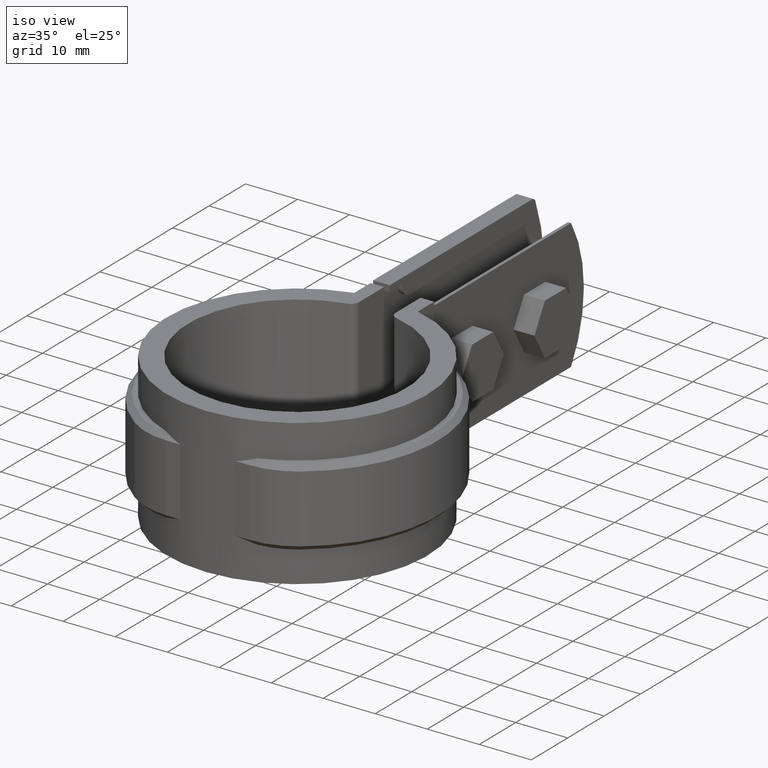
[diagram: clean part render]
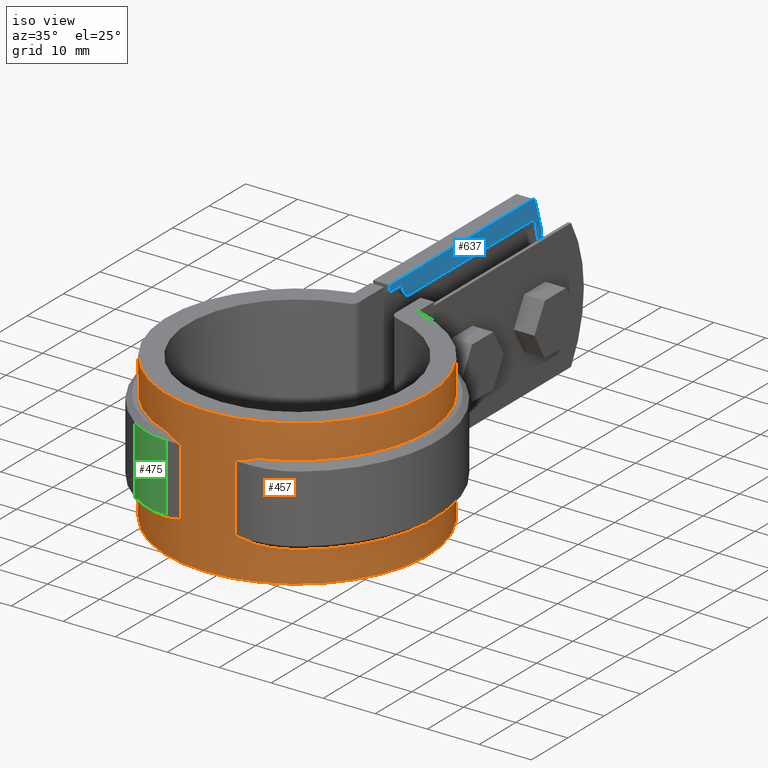
[diagram: same view with three faces highlighted in distinct colors, each labeled with its STEP entity id]
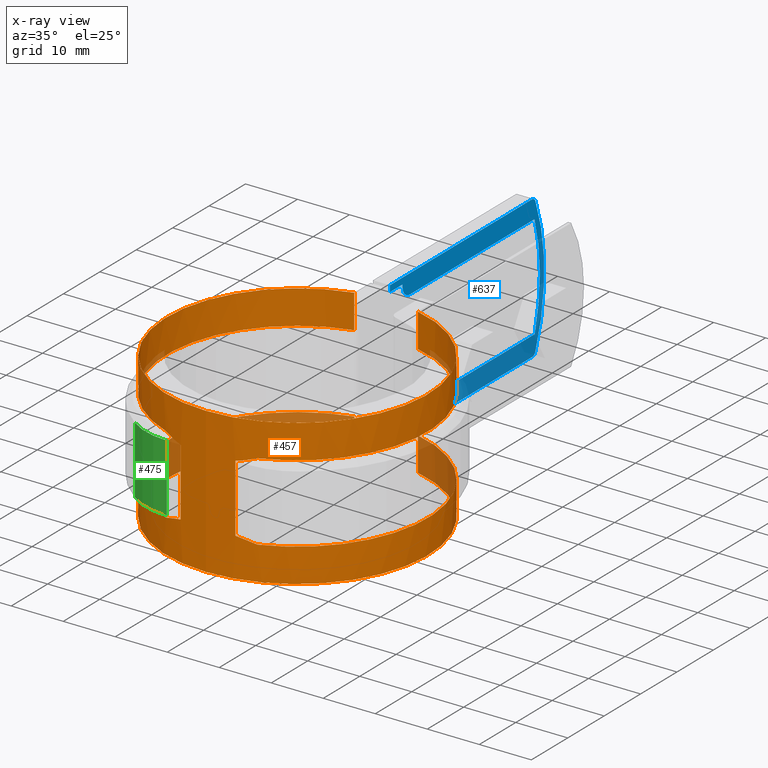
[diagram: x-ray of the same camera — body ghosted, the three highlighted faces saturated]
A machine part, iso view with three faces highlighted in distinct colors.
The next image is the same camera in x-ray (body ghosted, the three faces saturated) — at least one of them is partly hidden behind the body in this view.
Their STEP definitions:

[orange] entity #457 — the highlighted cylindrical surface (partial cylindrical patch) has radius 25.095 mm, axis along (0, 0, 1).
#457 = ADVANCED_FACE( '', ( #909 ), #910, .T. );
#909 = FACE_OUTER_BOUND( '', #1985, .T. );
#910 = CYLINDRICAL_SURFACE( '', #1986, 25.0950000000000 );
#1985 = EDGE_LOOP( '', ( #4580, #4581, #4582, #4583, #4584, #4585, #4586, #4587, #4588, #4589, #4590, #4591, #4592, #4593, #4594, #4595, #4596, #4597, #4598, #4599 ) );
#1986 = AXIS2_PLACEMENT_3D( '', #4600, #4601, #4602 );
#4580 = ORIENTED_EDGE( '', *, *, #6748, .F. );
#4581 = ORIENTED_EDGE( '', *, *, #6743, .T. );
#4582 = ORIENTED_EDGE( '', *, *, #6773, .T. );
#4583 = ORIENTED_EDGE( '', *, *, #6893, .F. );
#4584 = ORIENTED_EDGE( '', *, *, #6894, .T. );
#4585 = ORIENTED_EDGE( '', *, *, #6895, .T. );
#4586 = ORIENTED_EDGE( '', *, *, #6874, .T. );
#4587 = ORIENTED_EDGE( '', *, *, #6891, .F. );
#4588 = ORIENTED_EDGE( '', *, *, #6896, .T. );
#4589 = ORIENTED_EDGE( '', *, *, #6897, .T. );
#4590 = ORIENTED_EDGE( '', *, *, #6898, .F. );
#4591 = ORIENTED_EDGE( '', *, *, #6899, .T. );
#4592 = ORIENTED_EDGE( '', *, *, #6830, .T. );
#4593 = ORIENTED_EDGE( '', *, *, #6900, .T. );
#4594 = ORIENTED_EDGE( '', *, *, #6901, .T. );
#4595 = ORIENTED_EDGE( '', *, *, #6902, .T. );
#4596 = ORIENTED_EDGE( '', *, *, #6903, .T. );
#4597 = ORIENTED_EDGE( '', *, *, #6904, .T. );
#4598 = ORIENTED_EDGE( '', *, *, #6905, .F. );
#4599 = ORIENTED_EDGE( '', *, *, #6888, .F. );
#4600 = CARTESIAN_POINT( '', ( 0.000000000000000, 0.000000000000000, -26.5000000000000 ) );
#4601 = DIRECTION( '', ( 0.000000000000000, 0.000000000000000, 1.00000000000000 ) );
#4602 = DIRECTION( '', ( -1.00000000000000, 6.07153216591882E-017, 0.000000000000000 ) );
#6743 = EDGE_CURVE( '', #7779, #7777, #7780, .F. );
#6748 = EDGE_CURVE( '', #7779, #7787, #7788, .T. );
#6773 = EDGE_CURVE( '', #7777, #7828, #7830, .T. );
#6830 = EDGE_CURVE( '', #7929, #7932, #7934, .F. );
#6874 = EDGE_CURVE( '', #8005, #8006, #8007, .T. );
#6888 = EDGE_CURVE( '', #7787, #8025, #8026, .F. );
#6891 = EDGE_CURVE( '', #8028, #8006, #8030, .F. );
#6893 = EDGE_CURVE( '', #8032, #7828, #8033, .F. );
#6894 = EDGE_CURVE( '', #8032, #8034, #8035, .F. );
#6895 = EDGE_CURVE( '', #8034, #8005, #8036, .F. );
#6896 = EDGE_CURVE( '', #8028, #8037, #8038, .F. );
#6897 = EDGE_CURVE( '', #8037, #8039, #8040, .F. );
#6898 = EDGE_CURVE( '', #8041, #8039, #8042, .T. );
#6899 = EDGE_CURVE( '', #8041, #7929, #8043, .F. );
#6900 = EDGE_CURVE( '', #7932, #8044, #8045, .F. );
#6901 = EDGE_CURVE( '', #8044, #8046, #8047, .T. );
#6902 = EDGE_CURVE( '', #8046, #8048, #8049, .F. );
#6903 = EDGE_CURVE( '', #8048, #8050, #8051, .T. );
#6904 = EDGE_CURVE( '', #8050, #8052, #8053, .F. );
#6905 = EDGE_CURVE( '', #8025, #8052, #8054, .F. );
#7777 = VERTEX_POINT( '', #10158 );
#7779 = VERTEX_POINT( '', #10161 );
#7780 = B_SPLINE_CURVE_WITH_KNOTS( '', 3, ( #10162, #10163, #10164, #10165, #10166 ), .UNSPECIFIED., .F., .F., ( 4, 1, 4 ), ( 0.154019345708681, 0.154505863918517, 0.154992382128352 ), .UNSPECIFIED. );
#7787 = VERTEX_POINT( '', #10176 );
#7788 = CIRCLE( '', #10177, 25.0950000000000 );
#7828 = VERTEX_POINT( '', #10537 );
#7830 = ELLIPSE( '', #10540, 35.4896893477528, 25.0950000000000 );
#7929 = VERTEX_POINT( '', #10994 );
#7932 = VERTEX_POINT( '', #10998 );
#7934 = ELLIPSE( '', #11001, 35.4896893477529, 25.0950000000000 );
#8005 = VERTEX_POINT( '', #11202 );
#8006 = VERTEX_POINT( '', #11203 );
#8007 = CIRCLE( '', #11204, 25.0950000000000 );
#8025 = VERTEX_POINT( '', #11264 );
#8026 = LINE( '', #11265, #11266 );
#8028 = VERTEX_POINT( '', #11269 );
#8030 = LINE( '', #11272, #11273 );
#8032 = VERTEX_POINT( '', #11278 );
#8033 = LINE( '', #11279, #11280 );
#8034 = VERTEX_POINT( '', #11281 );
#8035 = ELLIPSE( '', #11282, 35.4896893477528, 25.0950000000000 );
#8036 = B_SPLINE_CURVE_WITH_KNOTS( '', 3, ( #11283, #11284, #11285, #11286, #11287 ), .UNSPECIFIED., .F., .F., ( 4, 1, 4 ), ( 0.0100125741625973, 0.0104966312478403, 0.0109806883330834 ), .UNSPECIFIED. );
#8037 = VERTEX_POINT( '', #11288 );
#8038 = CIRCLE( '', #11289, 25.0950000000000 );
#8039 = VERTEX_POINT( '', #11290 );
#8040 = LINE( '', #11291, #11292 );
#8041 = VERTEX_POINT( '', #11293 );
#8042 = CIRCLE( '', #11294, 25.0950000000000 );
#8043 = B_SPLINE_CURVE_WITH_KNOTS( '', 3, ( #11295, #11296, #11297, #11298, #11299, #11300 ), .UNSPECIFIED., .F., .F., ( 4, 2, 4 ), ( 0.0285194462279479, 0.0290003593783156, 0.0294812725286834 ), .UNSPECIFIED. );
#8044 = VERTEX_POINT( '', #11301 );
#8045 = LINE( '', #11302, #11303 );
#8046 = VERTEX_POINT( '', #11304 );
#8047 = ELLIPSE( '', #11305, 35.4896893477528, 25.0950000000000 );
#8048 = VERTEX_POINT( '', #11306 );
#8049 = B_SPLINE_CURVE_WITH_KNOTS( '', 3, ( #11307, #11308, #11309, #11310, #11311 ), .UNSPECIFIED., .F., .F., ( 4, 1, 4 ), ( 0.128825497296135, 0.129311573833060, 0.129797650369984 ), .UNSPECIFIED. );
#8050 = VERTEX_POINT( '', #11312 );
#8051 = CIRCLE( '', #11313, 25.0950000000000 );
#8052 = VERTEX_POINT( '', #11314 );
#8053 = LINE( '', #11315, #11316 );
#8054 = CIRCLE( '', #11317, 25.0950000000000 );
#10158 = CARTESIAN_POINT( '', ( -7.90550795331972, -23.8172619962917, -5.28026199629165 ) );
#10161 = CARTESIAN_POINT( '', ( -8.78767351630305, -23.5060804723132, -5.00000000000000 ) );
#10162 = CARTESIAN_POINT( '', ( -7.90550795331972, -23.8172619962917, -5.28026199629165 ) );
#10163 = CARTESIAN_POINT( '', ( -8.05264319439010, -23.7684243583349, -5.23142435833492 ) );
#10164 = CARTESIAN_POINT( '', ( -8.34679159844528, -23.6677628411295, -5.13580403514462 ) );
#10165 = CARTESIAN_POINT( '', ( -8.64073899524960, -23.5610114762640, -5.04450885988853 ) );
#10166 = CARTESIAN_POINT( '', ( -8.78767351630305, -23.5060804723132, -5.00000000000000 ) );
#10176 = CARTESIAN_POINT( '', ( -6.10000000000002, 24.3423299008127, -5.00000000000000 ) );
#10177 = AXIS2_PLACEMENT_3D( '', #13019, #13020, #13021 );
#10537 = CARTESIAN_POINT( '', ( -5.26257123467226, -24.5370000000000, -6.00000000000000 ) );
#10540 = AXIS2_PLACEMENT_3D( '', #13033, #13034, #13035 );
#10994 = CARTESIAN_POINT( '', ( 7.90550795331963, -23.8172619962917, -19.7197380037083 ) );
#10998 = CARTESIAN_POINT( '', ( 5.26257123467226, -24.5370000000000, -19.0000000000000 ) );
#11001 = AXIS2_PLACEMENT_3D( '', #13096, #13097, #13098 );
#11202 = CARTESIAN_POINT( '', ( -8.78767351630304, -23.5060804723133, -20.0000000000000 ) );
#11203 = CARTESIAN_POINT( '', ( -6.10000000000002, 24.3423299008127, -20.0000000000000 ) );
#11204 = AXIS2_PLACEMENT_3D( '', #13145, #13146, #13147 );
#11264 = CARTESIAN_POINT( '', ( -6.10000000000002, 24.3423299008127, 1.50000000000000 ) );
#11265 = CARTESIAN_POINT( '', ( -6.10000000000002, 24.3423299008127, -26.5000000000000 ) );
#11266 = VECTOR( '', #13163, 1000.00000000000 );
#11269 = CARTESIAN_POINT( '', ( -6.10000000000002, 24.3423299008127, -26.5000000000000 ) );
#11272 = CARTESIAN_POINT( '', ( -6.10000000000002, 24.3423299008127, -26.5000000000000 ) );
#11273 = VECTOR( '', #13166, 1000.00000000000 );
#11278 = CARTESIAN_POINT( '', ( -5.26257123467226, -24.5370000000000, -19.0000000000000 ) );
#11279 = CARTESIAN_POINT( '', ( -5.26257123467227, -24.5370000000000, -26.5000000000000 ) );
#11280 = VECTOR( '', #13167, 1000.00000000000 );
#11281 = CARTESIAN_POINT( '', ( -7.90550795331963, -23.8172619962917, -19.7197380037083 ) );
#11282 = AXIS2_PLACEMENT_3D( '', #13168, #13169, #13170 );
#11283 = CARTESIAN_POINT( '', ( -8.78767351630303, -23.5060804723132, -20.0000000000000 ) );
#11284 = CARTESIAN_POINT( '', ( -8.64134229677105, -23.5607859339066, -19.9556738899697 ) );
#11285 = CARTESIAN_POINT( '', ( -8.34799126754326, -23.6673398959445, -19.8645775279822 ) );
#11286 = CARTESIAN_POINT( '', ( -8.05323993404626, -23.7682262864450, -19.7687737135551 ) );
#11287 = CARTESIAN_POINT( '', ( -7.90550795331963, -23.8172619962917, -19.7197380037083 ) );
#11288 = CARTESIAN_POINT( '', ( 6.09999999999998, 24.3423299008127, -26.5000000000000 ) );
#11289 = AXIS2_PLACEMENT_3D( '', #13171, #13172, #13173 );
#11290 = CARTESIAN_POINT( '', ( 6.09999999999998, 24.3423299008127, -20.0000000000000 ) );
#11291 = CARTESIAN_POINT( '', ( 6.09999999999998, 24.3423299008127, -26.5000000000000 ) );
#11292 = VECTOR( '', #13174, 1000.00000000000 );
#11293 = CARTESIAN_POINT( '', ( 8.78767351630305, -23.5060804723132, -20.0000000000000 ) );
#11294 = AXIS2_PLACEMENT_3D( '', #13175, #13176, #13177 );
#11295 = CARTESIAN_POINT( '', ( 7.90550795331962, -23.8172619962917, -19.7197380037083 ) );
#11296 = CARTESIAN_POINT( '', ( 8.05239838201786, -23.7685056173040, -19.7684943826960 ) );
#11297 = CARTESIAN_POINT( '', ( 8.19936032040112, -23.7182172178868, -19.8162707087742 ) );
#11298 = CARTESIAN_POINT( '', ( 8.49345721964819, -23.6144981339142, -19.9097472412063 ) );
#11299 = CARTESIAN_POINT( '', ( 8.64077810949938, -23.5609968535260, -19.9555029884549 ) );
#11300 = CARTESIAN_POINT( '', ( 8.78767351630305, -23.5060804723132, -20.0000000000000 ) );
#11301 = CARTESIAN_POINT( '', ( 5.26257123467226, -24.5370000000000, -6.00000000000000 ) );
#11302 = CARTESIAN_POINT( '', ( 5.26257123467227, -24.5370000000000, -26.5000000000000 ) );
#11303 = VECTOR( '', #13178, 1000.00000000000 );
#11304 = CARTESIAN_POINT( '', ( 7.90550795331961, -23.8172619962917, -5.28026199629169 ) );
#11305 = AXIS2_PLACEMENT_3D( '', #13179, #13180, #13181 );
#11306 = CARTESIAN_POINT( '', ( 8.78767351630307, -23.5060804723132, -5.00000000000000 ) );
#11307 = CARTESIAN_POINT( '', ( 8.78767351630308, -23.5060804723132, -4.99999999999999 ) );
#11308 = CARTESIAN_POINT( '', ( 8.64068522618238, -23.5610315776590, -5.04452514741486 ) );
#11309 = CARTESIAN_POINT( '', ( 8.34668511545622, -23.6678003927984, -5.13583789811837 ) );
#11310 = CARTESIAN_POINT( '', ( 8.05259043250689, -23.7684418712416, -5.23144187124164 ) );
#11311 = CARTESIAN_POINT( '', ( 7.90550795331961, -23.8172619962917, -5.28026199629170 ) );
#11312 = CARTESIAN_POINT( '', ( 6.09999999999998, 24.3423299008127, -5.00000000000000 ) );
#11313 = AXIS2_PLACEMENT_3D( '', #13182, #13183, #13184 );
#11314 = CARTESIAN_POINT( '', ( 6.09999999999998, 24.3423299008127, 1.50000000000000 ) );
#11315 = CARTESIAN_POINT( '', ( 6.09999999999998, 24.3423299008127, -26.5000000000000 ) );
#11316 = VECTOR( '', #13185, 1000.00000000000 );
#11317 = AXIS2_PLACEMENT_3D( '', #13186, #13187, #13188 );
#13019 = CARTESIAN_POINT( '', ( 0.000000000000000, 0.000000000000000, -5.00000000000000 ) );
#13020 = DIRECTION( '', ( 0.000000000000000, 0.000000000000000, -1.00000000000000 ) );
#13021 = DIRECTION( '', ( -1.00000000000000, 0.000000000000000, 0.000000000000000 ) );
#13033 = CARTESIAN_POINT( '', ( 0.000000000000000, 0.000000000000000, 18.5369999999999 ) );
#13034 = DIRECTION( '', ( -1.96261557335472E-017, -0.707106781186546, 0.707106781186549 ) );
#13035 = DIRECTION( '', ( -1.96261557335472E-017, -0.707106781186549, -0.707106781186546 ) );
#13096 = CARTESIAN_POINT( '', ( 0.000000000000000, 0.000000000000000, -43.5370000000000 ) );
#13097 = DIRECTION( '', ( 1.96261557335472E-017, 0.707106781186548, 0.707106781186547 ) );
#13098 = DIRECTION( '', ( 1.96261557335472E-017, 0.707106781186547, -0.707106781186548 ) );
#13145 = CARTESIAN_POINT( '', ( 0.000000000000000, 0.000000000000000, -20.0000000000000 ) );
#13146 = DIRECTION( '', ( 0.000000000000000, 0.000000000000000, -1.00000000000000 ) );
#13147 = DIRECTION( '', ( -1.00000000000000, 0.000000000000000, 0.000000000000000 ) );
#13163 = DIRECTION( '', ( 0.000000000000000, 0.000000000000000, -1.00000000000000 ) );
#13166 = DIRECTION( '', ( 0.000000000000000, 0.000000000000000, -1.00000000000000 ) );
#13167 = DIRECTION( '', ( 0.000000000000000, 0.000000000000000, -1.00000000000000 ) );
#13168 = CARTESIAN_POINT( '', ( 0.000000000000000, 0.000000000000000, -43.5370000000000 ) );
#13169 = DIRECTION( '', ( 1.96261557335472E-017, 0.707106781186547, 0.707106781186548 ) );
#13170 = DIRECTION( '', ( 1.96261557335472E-017, 0.707106781186548, -0.707106781186547 ) );
#13171 = CARTESIAN_POINT( '', ( 0.000000000000000, 0.000000000000000, -26.5000000000000 ) );
#13172 = DIRECTION( '', ( 0.000000000000000, 0.000000000000000, -1.00000000000000 ) );
#13173 = DIRECTION( '', ( -1.00000000000000, 0.000000000000000, 0.000000000000000 ) );
#13174 = DIRECTION( '', ( 0.000000000000000, 0.000000000000000, -1.00000000000000 ) );
#13175 = CARTESIAN_POINT( '', ( 0.000000000000000, 0.000000000000000, -20.0000000000000 ) );
#13176 = DIRECTION( '', ( 0.000000000000000, 0.000000000000000, 1.00000000000000 ) );
#13177 = DIRECTION( '', ( 1.00000000000000, 0.000000000000000, 0.000000000000000 ) );
#13178 = DIRECTION( '', ( 0.000000000000000, 0.000000000000000, -1.00000000000000 ) );
#13179 = CARTESIAN_POINT( '', ( 0.000000000000000, 0.000000000000000, 18.5370000000000 ) );
#13180 = DIRECTION( '', ( -1.96261557335472E-017, -0.707106781186547, 0.707106781186548 ) );
#13181 = DIRECTION( '', ( -1.96261557335472E-017, -0.707106781186548, -0.707106781186547 ) );
#13182 = CARTESIAN_POINT( '', ( 0.000000000000000, 0.000000000000000, -5.00000000000000 ) );
#13183 = DIRECTION( '', ( 0.000000000000000, 0.000000000000000, 1.00000000000000 ) );
#13184 = DIRECTION( '', ( 1.00000000000000, 0.000000000000000, 0.000000000000000 ) );
#13185 = DIRECTION( '', ( 0.000000000000000, 0.000000000000000, -1.00000000000000 ) );
#13186 = CARTESIAN_POINT( '', ( 0.000000000000000, 0.000000000000000, 1.50000000000000 ) );
#13187 = DIRECTION( '', ( 0.000000000000000, 0.000000000000000, -1.00000000000000 ) );
#13188 = DIRECTION( '', ( -1.00000000000000, 0.000000000000000, 0.000000000000000 ) );

[blue] entity #637 — the highlighted planar face has unit normal (1, -0, -0).
#637 = ADVANCED_FACE( '', ( #1291 ), #1292, .T. );
#1291 = FACE_OUTER_BOUND( '', #2679, .T. );
#1292 = PLANE( '', #2680 );
#2679 = EDGE_LOOP( '', ( #6057, #6058, #6059, #6060, #6061, #6062, #6063, #6064, #6065, #6066, #6067, #6068, #6069, #6070, #6071, #6072 ) );
#2680 = AXIS2_PLACEMENT_3D( '', #6073, #6074, #6075 );
#6057 = ORIENTED_EDGE( '', *, *, #7272, .T. );
#6058 = ORIENTED_EDGE( '', *, *, #7218, .T. );
#6059 = ORIENTED_EDGE( '', *, *, #7282, .F. );
#6060 = ORIENTED_EDGE( '', *, *, #7285, .F. );
#6061 = ORIENTED_EDGE( '', *, *, #7287, .F. );
#6062 = ORIENTED_EDGE( '', *, *, #7290, .T. );
#6063 = ORIENTED_EDGE( '', *, *, #7347, .T. );
#6064 = ORIENTED_EDGE( '', *, *, #7348, .T. );
#6065 = ORIENTED_EDGE( '', *, *, #7048, .T. );
#6066 = ORIENTED_EDGE( '', *, *, #7228, .F. );
#6067 = ORIENTED_EDGE( '', *, *, #7225, .T. );
#6068 = ORIENTED_EDGE( '', *, *, #7342, .T. );
#6069 = ORIENTED_EDGE( '', *, *, #7345, .T. );
#6070 = ORIENTED_EDGE( '', *, *, #7365, .T. );
#6071 = ORIENTED_EDGE( '', *, *, #7276, .T. );
#6072 = ORIENTED_EDGE( '', *, *, #7274, .T. );
#6073 = CARTESIAN_POINT( '', ( -3.50000000000003, 36.3954076850713, -12.5000000000053 ) );
#6074 = DIRECTION( '', ( 1.00000000000000, -6.82234018656030E-016, -2.40692977073864E-031 ) );
#6075 = DIRECTION( '', ( 0.000000000000000, -3.52801195032781E-016, 1.00000000000000 ) );
#7048 = EDGE_CURVE( '', #8312, #8313, #8314, .T. );
#7218 = EDGE_CURVE( '', #8582, #8580, #8583, .T. );
#7225 = EDGE_CURVE( '', #8592, #8593, #8594, .T. );
#7228 = EDGE_CURVE( '', #8592, #8313, #8597, .T. );
#7272 = EDGE_CURVE( '', #8663, #8582, #8664, .T. );
#7274 = EDGE_CURVE( '', #8666, #8663, #8667, .T. );
#7276 = EDGE_CURVE( '', #8669, #8666, #8670, .T. );
#7282 = EDGE_CURVE( '', #8679, #8580, #8680, .T. );
#7285 = EDGE_CURVE( '', #8682, #8679, #8684, .T. );
#7287 = EDGE_CURVE( '', #8685, #8682, #8687, .T. );
#7290 = EDGE_CURVE( '', #8685, #8689, #8691, .T. );
#7342 = EDGE_CURVE( '', #8593, #8767, #8768, .T. );
#7345 = EDGE_CURVE( '', #8767, #8770, #8772, .T. );
#7347 = EDGE_CURVE( '', #8689, #8773, #8775, .T. );
#7348 = EDGE_CURVE( '', #8773, #8312, #8776, .T. );
#7365 = EDGE_CURVE( '', #8770, #8669, #8801, .T. );
#8312 = VERTEX_POINT( '', #11687 );
#8313 = VERTEX_POINT( '', #11688 );
#8314 = CIRCLE( '', #11689, 0.999999999999972 );
#8580 = VERTEX_POINT( '', #12112 );
#8582 = VERTEX_POINT( '', #12115 );
#8583 = CIRCLE( '', #12116, 35.2000000000000 );
#8592 = VERTEX_POINT( '', #12130 );
#8593 = VERTEX_POINT( '', #12131 );
#8594 = CIRCLE( '', #12132, 0.999999999999972 );
#8597 = CIRCLE( '', #12137, 36.4000000000000 );
#8663 = VERTEX_POINT( '', #12225 );
#8664 = LINE( '', #12226, #12227 );
#8666 = VERTEX_POINT( '', #12230 );
#8667 = CIRCLE( '', #12231, 1.99999999999994 );
#8669 = VERTEX_POINT( '', #12234 );
#8670 = LINE( '', #12235, #12236 );
#8679 = VERTEX_POINT( '', #12249 );
#8680 = LINE( '', #12250, #12251 );
#8682 = VERTEX_POINT( '', #12254 );
#8684 = CIRCLE( '', #12257, 1.99999999999994 );
#8685 = VERTEX_POINT( '', #12258 );
#8687 = LINE( '', #12261, #12262 );
#8689 = VERTEX_POINT( '', #12265 );
#8691 = LINE( '', #12268, #12269 );
#8767 = VERTEX_POINT( '', #12372 );
#8768 = LINE( '', #12373, #12374 );
#8770 = VERTEX_POINT( '', #12377 );
#8772 = LINE( '', #12380, #12381 );
#8773 = VERTEX_POINT( '', #12382 );
#8775 = LINE( '', #12385, #12386 );
#8776 = LINE( '', #12387, #12388 );
#8801 = LINE( '', #12427, #12428 );
#11687 = CARTESIAN_POINT( '', ( -3.50000000000001, 69.4388639207610, -26.2000000000053 ) );
#11688 = CARTESIAN_POINT( '', ( -3.50000000000001, 70.3722948878708, -25.5587570621522 ) );
#11689 = AXIS2_PLACEMENT_3D( '', #13397, #13398, #13399 );
#12112 = CARTESIAN_POINT( '', ( -3.50000000000001, 70.1450743500909, -22.5000000000053 ) );
#12115 = CARTESIAN_POINT( '', ( -3.50000000000001, 70.1450743500909, -2.50000000000533 ) );
#12116 = AXIS2_PLACEMENT_3D( '', #13591, #13592, #13593 );
#12130 = CARTESIAN_POINT( '', ( -3.50000000000001, 70.3722948878708, 0.558757062141560 ) );
#12131 = CARTESIAN_POINT( '', ( -3.50000000000002, 69.4388639207610, 1.19999999999467 ) );
#12132 = AXIS2_PLACEMENT_3D( '', #13602, #13603, #13604 );
#12137 = AXIS2_PLACEMENT_3D( '', #13607, #13608, #13609 );
#12225 = CARTESIAN_POINT( '', ( -3.50000000000004, 35.8954076850713, -2.50000000000533 ) );
#12226 = CARTESIAN_POINT( '', ( -3.50000000000004, 35.8954076850713, -2.50000000000533 ) );
#12227 = VECTOR( '', #13695, 1000.00000000000 );
#12230 = CARTESIAN_POINT( '', ( -3.50000000000004, 33.8954076850714, -0.500000000005322 ) );
#12231 = AXIS2_PLACEMENT_3D( '', #13697, #13698, #13699 );
#12234 = CARTESIAN_POINT( '', ( -3.50000000000004, 33.8954076850714, -5.33072658070739E-012 ) );
#12235 = CARTESIAN_POINT( '', ( -3.50000000000004, 33.8954076850714, -5.33072658070739E-012 ) );
#12236 = VECTOR( '', #13701, 1000.00000000000 );
#12249 = CARTESIAN_POINT( '', ( -3.50000000000003, 35.8954076850713, -22.5000000000053 ) );
#12250 = CARTESIAN_POINT( '', ( -3.50000000000003, 35.8954076850713, -22.5000000000053 ) );
#12251 = VECTOR( '', #13709, 1000.00000000000 );
#12254 = CARTESIAN_POINT( '', ( -3.50000000000003, 33.8954076850713, -24.5000000000053 ) );
#12257 = AXIS2_PLACEMENT_3D( '', #13712, #13713, #13714 );
#12258 = CARTESIAN_POINT( '', ( -3.50000000000003, 33.8954076850713, -25.0000000000053 ) );
#12261 = CARTESIAN_POINT( '', ( -3.50000000000003, 33.8954076850713, -25.0000000000053 ) );
#12262 = VECTOR( '', #13716, 1000.00000000000 );
#12265 = CARTESIAN_POINT( '', ( -3.50000000000003, 30.3954076850715, -25.0000000000053 ) );
#12268 = CARTESIAN_POINT( '', ( -3.50000000000001, 69.0871497616254, -25.0000000000053 ) );
#12269 = VECTOR( '', #13719, 1000.00000000000 );
#12372 = CARTESIAN_POINT( '', ( -3.50000000000004, 30.3954076850715, 1.19999999999468 ) );
#12373 = CARTESIAN_POINT( '', ( -3.50000000000002, 69.6866978373009, 1.19999999999467 ) );
#12374 = VECTOR( '', #13819, 1000.00000000000 );
#12377 = CARTESIAN_POINT( '', ( -3.50000000000004, 30.3954076850714, -5.32333062027482E-012 ) );
#12380 = CARTESIAN_POINT( '', ( -3.50000000000004, 30.3954076850714, 1.19999999999468 ) );
#12381 = VECTOR( '', #13822, 1000.00000000000 );
#12382 = CARTESIAN_POINT( '', ( -3.50000000000003, 30.3954076850714, -26.2000000000053 ) );
#12385 = CARTESIAN_POINT( '', ( -3.50000000000003, 30.3954076850714, -25.0000000000053 ) );
#12386 = VECTOR( '', #13824, 1000.00000000000 );
#12387 = CARTESIAN_POINT( '', ( -3.50000000000003, 30.3954076850714, -26.2000000000053 ) );
#12388 = VECTOR( '', #13825, 1000.00000000000 );
#12427 = CARTESIAN_POINT( '', ( -3.50000000000004, 30.3954076850714, -5.31986117332287E-012 ) );
#12428 = VECTOR( '', #13846, 1000.00000000000 );
#13397 = CARTESIAN_POINT( '', ( -3.50000000000001, 69.4388639207610, -25.2000000000053 ) );
#13398 = DIRECTION( '', ( 1.00000000000000, -6.82234018656030E-016, 3.52801195032781E-016 ) );
#13399 = DIRECTION( '', ( 6.82234018656030E-016, 1.00000000000000, -1.25333771139391E-016 ) );
#13591 = CARTESIAN_POINT( '', ( -3.50000000000003, 36.3954076850713, -12.5000000000053 ) );
#13592 = DIRECTION( '', ( -1.00000000000000, 6.65444511971059E-016, -3.52801195032781E-016 ) );
#13593 = DIRECTION( '', ( -3.52801195032781E-016, 1.43114686768784E-017, 1.00000000000000 ) );
#13602 = CARTESIAN_POINT( '', ( -3.50000000000002, 69.4388639207610, 0.199999999994671 ) );
#13603 = DIRECTION( '', ( 1.00000000000000, -6.82234018656030E-016, 3.52801195032781E-016 ) );
#13604 = DIRECTION( '', ( 6.82234018656030E-016, 1.00000000000000, -1.25333771139391E-016 ) );
#13607 = CARTESIAN_POINT( '', ( -3.50000000000003, 36.3954076850713, -12.5000000000053 ) );
#13608 = DIRECTION( '', ( -1.00000000000000, 6.97454658812823E-016, -3.52168329192323E-016 ) );
#13609 = DIRECTION( '', ( -3.52168329192323E-016, -9.67108337856341E-017, 1.00000000000000 ) );
#13695 = DIRECTION( '', ( 6.66766614912084E-016, 1.00000000000000, 1.97370347591844E-018 ) );
#13697 = CARTESIAN_POINT( '', ( -3.50000000000004, 35.8954076850713, -0.500000000005326 ) );
#13698 = DIRECTION( '', ( 1.00000000000000, -6.63400231144417E-016, 3.34402865354961E-016 ) );
#13699 = DIRECTION( '', ( -6.63400231144417E-016, -1.00000000000000, 3.50452506785311E-016 ) );
#13701 = DIRECTION( '', ( 3.52801195032781E-016, -2.42032289536751E-016, -1.00000000000000 ) );
#13709 = DIRECTION( '', ( 6.66766614912084E-016, 1.00000000000000, 1.97370347591844E-018 ) );
#13712 = CARTESIAN_POINT( '', ( -3.50000000000003, 35.8954076850713, -24.5000000000053 ) );
#13713 = DIRECTION( '', ( -1.00000000000000, 6.63400231144417E-016, -3.71199524710600E-016 ) );
#13714 = DIRECTION( '', ( -6.63400231144417E-016, -1.00000000000000, 2.42032289536757E-016 ) );
#13716 = DIRECTION( '', ( -3.52801195032781E-016, 2.42032289536751E-016, 1.00000000000000 ) );
#13719 = DIRECTION( '', ( -6.66766614912084E-016, -1.00000000000000, 6.98226199081313E-017 ) );
#13819 = DIRECTION( '', ( -6.66766614912084E-016, -1.00000000000000, 6.98226199081313E-017 ) );
#13822 = DIRECTION( '', ( 3.52801195032781E-016, -2.36356073601903E-016, -1.00000000000000 ) );
#13824 = DIRECTION( '', ( 3.52801195032781E-016, -2.36356073601903E-016, -1.00000000000000 ) );
#13825 = DIRECTION( '', ( 6.66766614912084E-016, 1.00000000000000, -6.98226199081313E-017 ) );
#13846 = DIRECTION( '', ( 6.66766614912084E-016, 1.00000000000000, -6.98226199081313E-017 ) );

[green] entity #475 — the highlighted cylindrical surface (partial cylindrical patch) has radius 13.6 mm, axis along (0, 0, 1).
#475 = ADVANCED_FACE( '', ( #945 ), #946, .T. );
#945 = FACE_OUTER_BOUND( '', #2021, .T. );
#946 = CYLINDRICAL_SURFACE( '', #2022, 13.6000000000000 );
#2021 = EDGE_LOOP( '', ( #4738, #4739, #4740, #4741 ) );
#2022 = AXIS2_PLACEMENT_3D( '', #4742, #4743, #4744 );
#4738 = ORIENTED_EDGE( '', *, *, #6752, .F. );
#4739 = ORIENTED_EDGE( '', *, *, #6936, .T. );
#4740 = ORIENTED_EDGE( '', *, *, #6941, .T. );
#4741 = ORIENTED_EDGE( '', *, *, #6741, .T. );
#4742 = CARTESIAN_POINT( '', ( -7.90550795331962, -10.9370000000000, -20.0000000000000 ) );
#4743 = DIRECTION( '', ( 0.000000000000000, 0.000000000000000, 1.00000000000000 ) );
#4744 = DIRECTION( '', ( 0.209705966713379, 0.977764494919307, 0.000000000000000 ) );
#6741 = EDGE_CURVE( '', #7775, #7773, #7776, .T. );
#6752 = EDGE_CURVE( '', #7792, #7773, #7794, .T. );
#6936 = EDGE_CURVE( '', #7792, #8096, #8098, .T. );
#6941 = EDGE_CURVE( '', #8096, #7775, #8105, .T. );
#7773 = VERTEX_POINT( '', #10153 );
#7775 = VERTEX_POINT( '', #10156 );
#7776 = CIRCLE( '', #10157, 13.6000000000000 );
#7792 = VERTEX_POINT( '', #10183 );
#7794 = LINE( '', #10185, #10186 );
#8096 = VERTEX_POINT( '', #11381 );
#8098 = CIRCLE( '', #11384, 13.6000000000000 );
#8105 = LINE( '', #11395, #11396 );
#10153 = CARTESIAN_POINT( '', ( -15.8725259722264, -21.9590970729900, -5.99999999999998 ) );
#10156 = CARTESIAN_POINT( '', ( -7.90550795331962, -24.5370000000000, -6.00000000000000 ) );
#10157 = AXIS2_PLACEMENT_3D( '', #13006, #13007, #13008 );
#10183 = CARTESIAN_POINT( '', ( -15.8725259722264, -21.9590970729900, -19.0000000000000 ) );
#10185 = CARTESIAN_POINT( '', ( -15.8725259722264, -21.9590970729900, -20.0000000000000 ) );
#10186 = VECTOR( '', #13027, 1000.00000000000 );
#11381 = CARTESIAN_POINT( '', ( -7.90550795331962, -24.5370000000000, -19.0000000000000 ) );
#11384 = AXIS2_PLACEMENT_3D( '', #13239, #13240, #13241 );
#11395 = CARTESIAN_POINT( '', ( -7.90550795331962, -24.5370000000000, -20.0000000000000 ) );
#11396 = VECTOR( '', #13246, 1000.00000000000 );
#13006 = CARTESIAN_POINT( '', ( -7.90550795331962, -10.9370000000000, -6.00000000000000 ) );
#13007 = DIRECTION( '', ( 0.000000000000000, 0.000000000000000, -1.00000000000000 ) );
#13008 = DIRECTION( '', ( -1.00000000000000, 0.000000000000000, 0.000000000000000 ) );
#13027 = DIRECTION( '', ( 0.000000000000000, 0.000000000000000, 1.00000000000000 ) );
#13239 = CARTESIAN_POINT( '', ( -7.90550795331962, -10.9370000000000, -19.0000000000000 ) );
#13240 = DIRECTION( '', ( 0.000000000000000, 0.000000000000000, 1.00000000000000 ) );
#13241 = DIRECTION( '', ( 1.00000000000000, 0.000000000000000, 0.000000000000000 ) );
#13246 = DIRECTION( '', ( 0.000000000000000, 0.000000000000000, 1.00000000000000 ) );